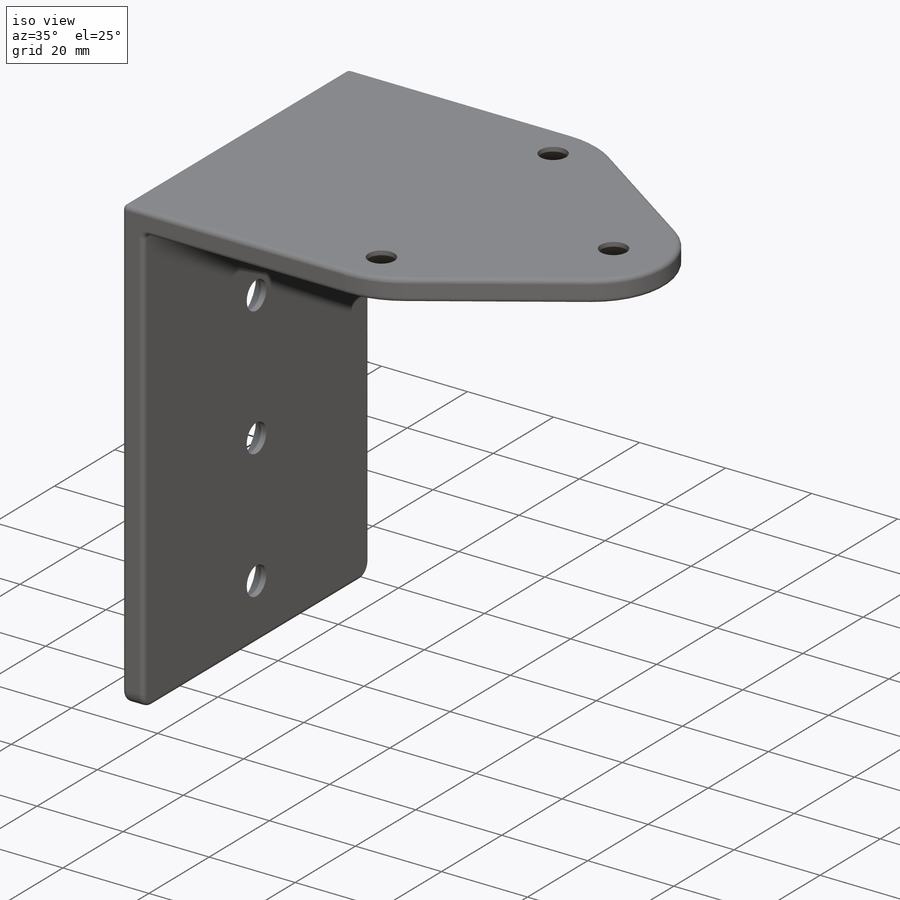
[diagram: iso view]
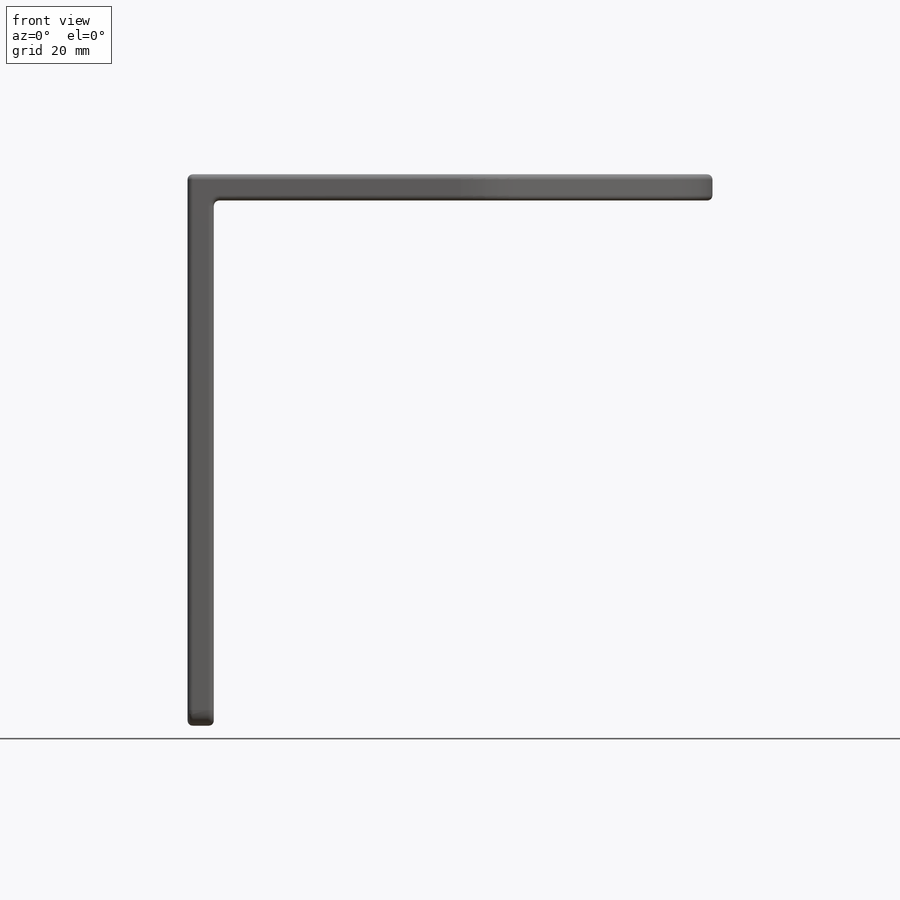
[diagram: front view]
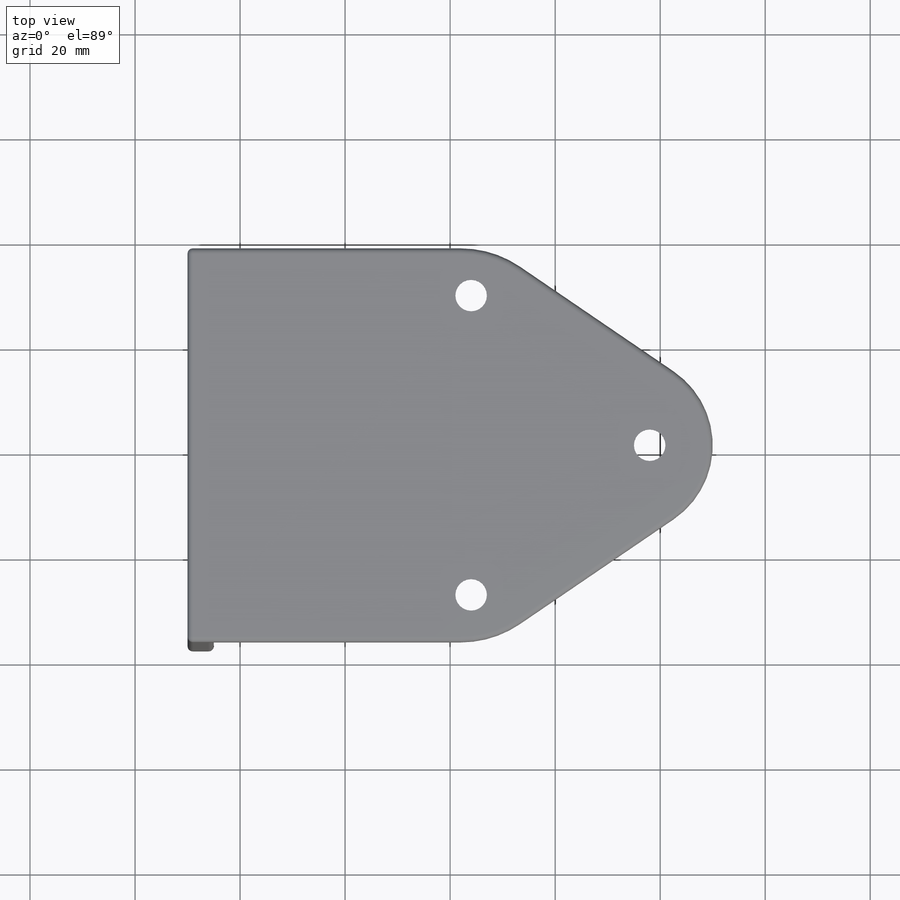
[diagram: top view]
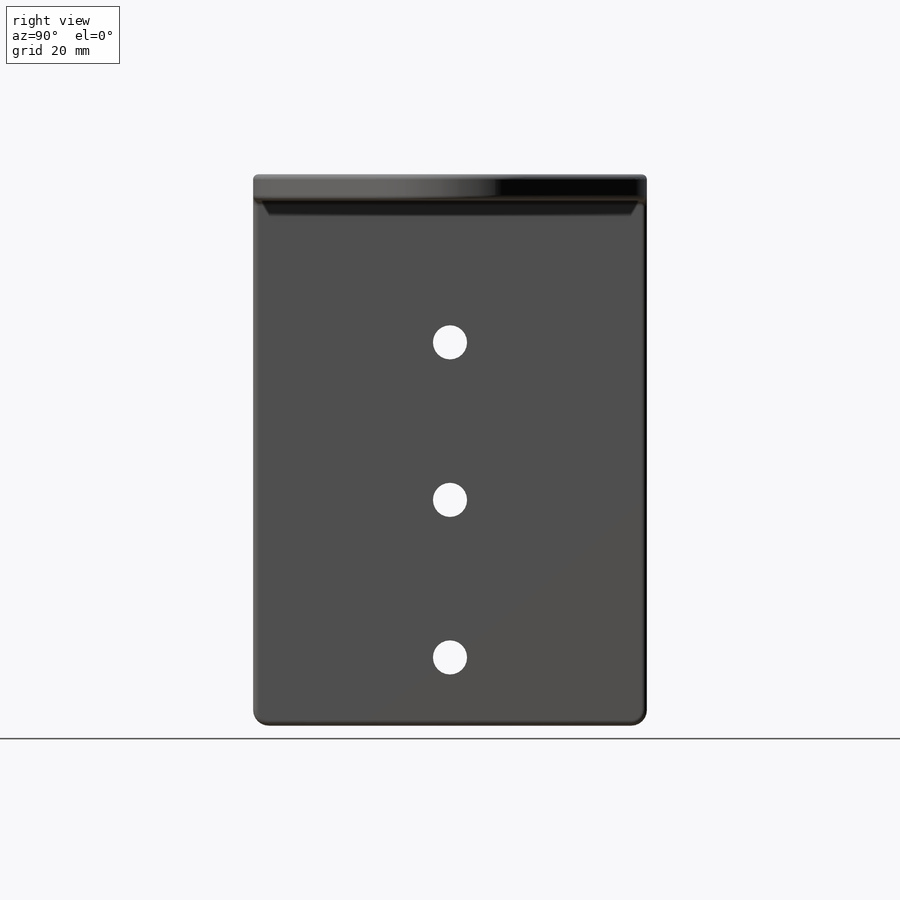
[diagram: right view]
SOLIDWORKS PART (.sldprt)
format: sldprt  version: not decoded by parser v0  size: 314,368 bytes
history: native  units: mm
features: sketch x5, fillet x5, plane x4, cut_revolve x3, material x1, extrude x1, cut_extrude x1, pattern_linear x1, mirror x1 (+10 scaffold rows collapsed)
feature tree (32):
  scaffold x10  (default folders/planes/origin — collapsed)
  material  "Matériau <non spécifié>"
  plane  "Plan de face"
  plane  "Plan de dessus"
  plane  "Plan de droite"
  sketch  "Esquisse1"  dims[c1.D1=5.0mm c1.D2=5.0mm c1.D3=5.0mm c2.D2=105.0mm c2.D3=100.0mm]
  extrude  "Boss.-Extru.1"  Depth=75mm
  fillet  "Congé1"  Radius=1mm
  fillet  "Congé2"  Radius=1mm
  sketch  "Esquisse2"  dims[c1.D1=~19.957029mm c1.D2=20.0mm c1.D3=17.0mm c2.D1=48.0mm]
  cut_extrude  "Enlèv. mat.-Extru.1"  [1 undecoded]
  fillet  "Congé3"  Radius=3mm
  fillet  "Congé4"  Radius=3mm
  sketch  "Esquisse5"  dims[c1.D1=13.0mm c1.D2=~6.161672mm c2.D2=45.0deg c2.D3=7.0mm c2.D4=3.75mm c2.D5=3.25mm c2.D6=1.0mm]
  cut_revolve  "Enlèvement de matière-Révolution2"  Angle=360deg
  pattern_linear  "Répétition linéaire2"  Count1=3 Count2=1 Spacing1=30mm Spacing2=10mm
  fillet  "Congé5"  Radius=1mm
  sketch  "Esquisse6"  dims[c1.D1=12.0mm c1.D2=3.0mm c1.D3=~6.779283mm c2.D3=45.0deg c2.D4=4.0mm c2.D5=1.0mm c2.D6=1.0mm]
  cut_revolve  "Enlèvement de matière-Révolution3"  Angle=360deg
  plane  "Plan1"  Offset=28.5mm
  sketch  "Esquisse10"  dims[c1.D1=3.0mm c1.D2=~8.293488mm c2.D2=45.0deg c2.D3=1.0mm c2.D4=1.0mm c2.D5=4.0mm c2.D6=46.0mm]
  cut_revolve  "Enlèvement de matière-Révolution5"  Angle=360deg
  mirror  "Symétrie1"
decode coverage: 15 of 17 modeling features carry decoded parameters
note: ~ marks probable driven/reference dimensions
note: 1 parameter value undecoded
note: suppression state not decoded; provenance and decode notes live in map.json
